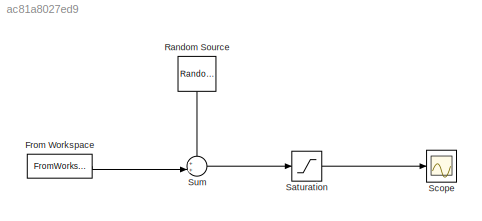
MODEL slx_ac81a8027ed9
KIND model
BLOCK [FromWorkspace] From Workspace
  Interpolate = off
  OutputAfterFinalValue = Cyclic repetition
  SampleTime = Sample_Time
  VariableName = z_one_dive
  ZeroCross = on
BLOCK [Reference] Random Source  REF=dspsrcs4/Random
Source
  CltLength = 12
  DataType = Single
  Diagnostics = AllowInheritedTsInSrc
  IsInherit = on
  MaxVal = 1
  MeanVal = .01
  MinVal = 0
  NormMethod = Ziggurat
  OutComplex = Real
  Ports = [0, 1]
  RepMode = Not repeatable
  SampFrame = 1
  SampMode = Continuous
  SampTime = 1
  SourceBlock = dspsrcs4/Random\nSource
  SourceType = Random Source
  SrcType = Gaussian
  UserDataPersistent = on
  VarVal = .022
  rawSeed = 1
BLOCK [Saturate] Saturation
  InputPortMap = u0
  LowerLimit = 0
  Ports = [1, 1]
  UpperLimit = 1
BLOCK [Scope] Scope
  Floating = off
  LimitDataPoints = off
  NumInputPorts = 1
  Ports = [1]
  ShowLegends = off
  ZoomMode = xonly
BLOCK [Sum] Sum
  IconShape = round
  InputSameDT = off
  Inputs = ++|
  OutDataTypeStr = Inherit: Inherit via internal rule
  Ports = [2, 1]
  SaturateOnIntegerOverflow = off
LINE From Workspace:1 -> Sum:2
LINE Random Source:1 -> Sum:1
LINE Saturation:1 -> Scope:1
LINE Sum:1 -> Saturation:1
